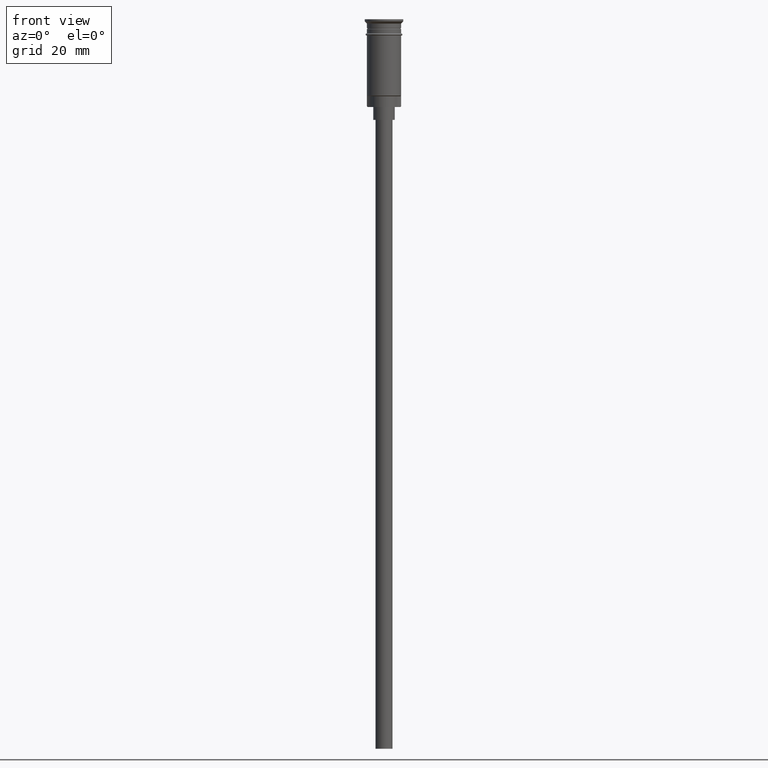
[diagram: clean part render]
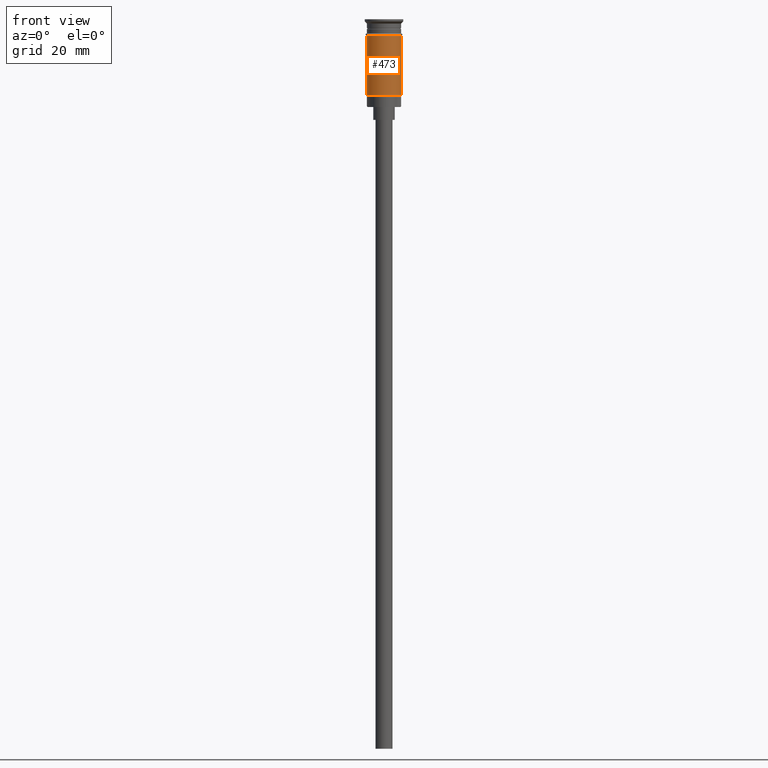
[diagram: same view with one face highlighted and labeled with its STEP entity id]
A machine part, front view. The second image highlights one B-rep face of the part: STEP entity #473.
In plain terms, the highlighted cylindrical surface (edge-blend (fillet) strip) has radius 4 mm, axis along (-0, -0, 1).
Its self-contained STEP definition (entity closure, byte-faithful):
#20 = VERTEX_POINT ( 'NONE', #889 ) ;
#39 = CARTESIAN_POINT ( 'NONE',  ( 4.000000000000000000, 0.000000000000000000, -3.799999999999998490 ) ) ;
#71 = DIRECTION ( 'NONE',  ( -0.000000000000000000, -0.000000000000000000, 1.000000000000000000 ) ) ;
#80 = VECTOR ( 'NONE', #232, 1000.000000000000000 ) ;
#109 = VERTEX_POINT ( 'NONE', #39 ) ;
#136 = AXIS2_PLACEMENT_3D ( 'NONE', #1515, #1396, #894 ) ;
#149 = CARTESIAN_POINT ( 'NONE',  ( 0.000000000000000000, 0.000000000000000000, 0.000000000000000000 ) ) ;
#232 = DIRECTION ( 'NONE',  ( -0.000000000000000000, -0.000000000000000000, 1.000000000000000000 ) ) ;
#322 = EDGE_CURVE ( 'NONE', #720, #1559, #1100, .T. ) ;
#331 = CARTESIAN_POINT ( 'NONE',  ( -4.000000000000000000, 4.898587196589412829E-16, 0.000000000000000000 ) ) ;
#336 = AXIS2_PLACEMENT_3D ( 'NONE', #925, #1156, #1410 ) ;
#373 = CARTESIAN_POINT ( 'NONE',  ( -4.000000000000000000, 4.898587196589412829E-16, -3.799999999999998490 ) ) ;
#381 = CIRCLE ( 'NONE', #136, 4.000000000000000000 ) ;
#398 = EDGE_CURVE ( 'NONE', #720, #20, #381, .T. ) ;
#446 = CARTESIAN_POINT ( 'NONE',  ( -3.999999999999997335, 0.000000000000000000, -17.79999999999998295 ) ) ;
#473 = ADVANCED_FACE ( 'NONE', ( #1022 ), #746, .T. ) ;
#538 = ORIENTED_EDGE ( 'NONE', *, *, #398, .T. ) ;
#585 = ORIENTED_EDGE ( 'NONE', *, *, #626, .T. ) ;
#626 = EDGE_CURVE ( 'NONE', #20, #109, #1405, .T. ) ;
#638 = DIRECTION ( 'NONE',  ( 1.000000000000000000, 0.000000000000000000, 0.000000000000000000 ) ) ;
#712 = ORIENTED_EDGE ( 'NONE', *, *, #1494, .F. ) ;
#720 = VERTEX_POINT ( 'NONE', #446 ) ;
#746 = CYLINDRICAL_SURFACE ( 'NONE', #957, 4.000000000000000000 ) ;
#889 = CARTESIAN_POINT ( 'NONE',  ( 4.000000000000000000, 4.898587196589412829E-16, -17.79999999999998295 ) ) ;
#894 = DIRECTION ( 'NONE',  ( -1.000000000000000000, 0.000000000000000000, 0.000000000000000000 ) ) ;
#925 = CARTESIAN_POINT ( 'NONE',  ( 0.000000000000000000, 0.000000000000000000, -3.799999999999998490 ) ) ;
#957 = AXIS2_PLACEMENT_3D ( 'NONE', #149, #1381, #638 ) ;
#1022 = FACE_OUTER_BOUND ( 'NONE', #1520, .T. ) ;
#1048 = CARTESIAN_POINT ( 'NONE',  ( 4.000000000000000000, 0.000000000000000000, 0.000000000000000000 ) ) ;
#1100 = LINE ( 'NONE', #331, #80 ) ;
#1156 = DIRECTION ( 'NONE',  ( -0.000000000000000000, -0.000000000000000000, 1.000000000000000000 ) ) ;
#1327 = CIRCLE ( 'NONE', #336, 4.000000000000000000 ) ;
#1348 = VECTOR ( 'NONE', #71, 1000.000000000000000 ) ;
#1381 = DIRECTION ( 'NONE',  ( -0.000000000000000000, -0.000000000000000000, 1.000000000000000000 ) ) ;
#1396 = DIRECTION ( 'NONE',  ( -0.000000000000000000, -0.000000000000000000, 1.000000000000000000 ) ) ;
#1405 = LINE ( 'NONE', #1048, #1348 ) ;
#1410 = DIRECTION ( 'NONE',  ( 1.000000000000000000, 0.000000000000000000, 0.000000000000000000 ) ) ;
#1494 = EDGE_CURVE ( 'NONE', #1559, #109, #1327, .T. ) ;
#1515 = CARTESIAN_POINT ( 'NONE',  ( 0.000000000000000000, 0.000000000000000000, -17.79999999999998295 ) ) ;
#1520 = EDGE_LOOP ( 'NONE', ( #1587, #538, #585, #712 ) ) ;
#1559 = VERTEX_POINT ( 'NONE', #373 ) ;
#1587 = ORIENTED_EDGE ( 'NONE', *, *, #322, .F. ) ;